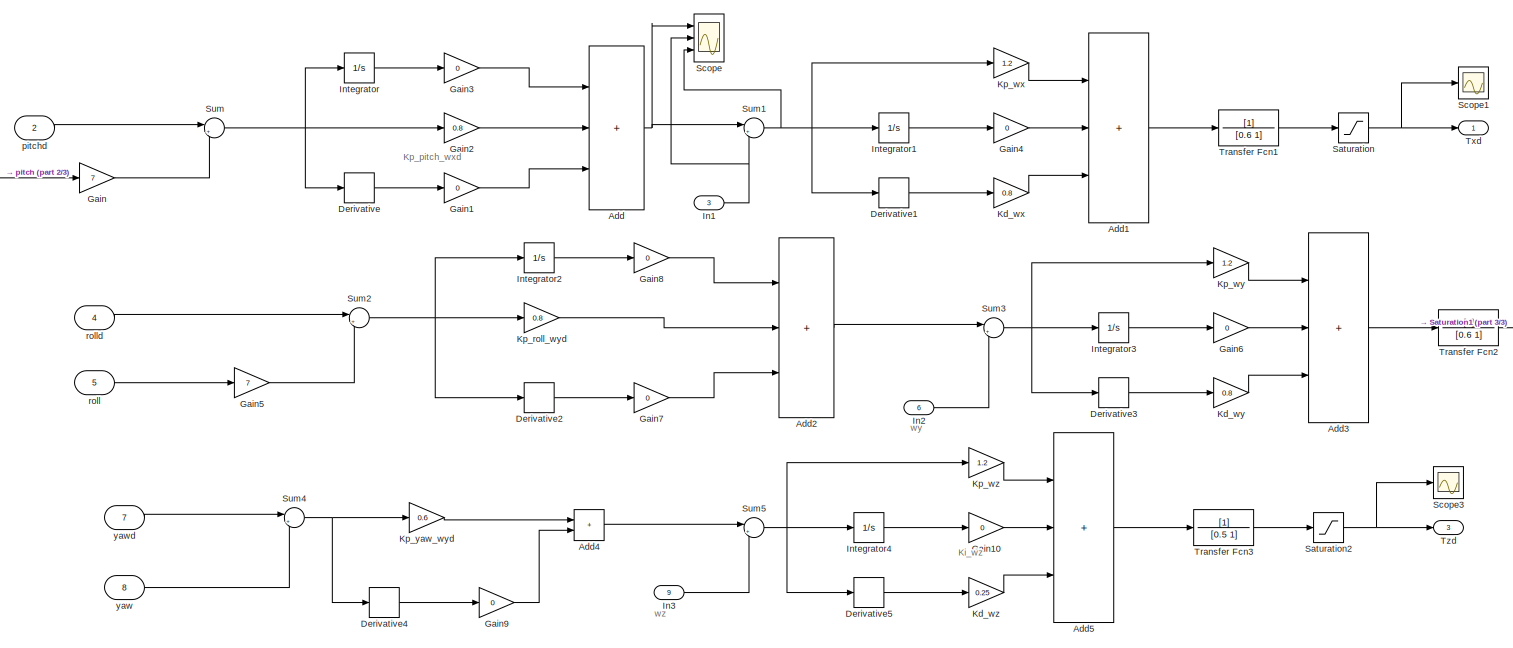
[diagram: root canvas - part 1/3, most of the canvas]
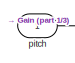
[diagram: root canvas - part 2/3, top left region]
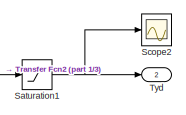
[diagram: root canvas - part 3/3, middle right region]
MODEL slx_b0e58092bb3f
KIND model
CONFIG AbsTol = auto
CONFIG EnableMultiTasking = off
CONFIG FixedStep = auto
CONFIG MaxStep = auto
CONFIG MinStep = auto
CONFIG RelTol = 1e-3
CONFIG SampleTimeConstraint = Unconstrained
CONFIG SolverName = VariableStepAuto
CONFIG StartTime = 0.0
CONFIG StopTime = 10.0
BLOCK [Sum] Add
  IconShape = rectangular
  Inputs = +++
  Ports = [3, 1]
BLOCK [Sum] Add1
  IconShape = rectangular
  Inputs = +++
  Ports = [3, 1]
BLOCK [Sum] Add2
  IconShape = rectangular
  Inputs = +++
  Ports = [3, 1]
BLOCK [Sum] Add3
  IconShape = rectangular
  Inputs = +++
  Ports = [3, 1]
BLOCK [Sum] Add4
  IconShape = rectangular
  Ports = [2, 1]
BLOCK [Sum] Add5
  IconShape = rectangular
  Inputs = +++
  Ports = [3, 1]
BLOCK [Derivative] Derivative
BLOCK [Derivative] Derivative1
BLOCK [Derivative] Derivative2
BLOCK [Derivative] Derivative3
BLOCK [Derivative] Derivative4
BLOCK [Derivative] Derivative5
BLOCK [Gain] Gain
  Gain = 7
BLOCK [Gain] Gain1
  Gain = 0
BLOCK [Gain] Gain10
  Gain = 0
BLOCK [Gain] Gain2
  Gain = 0.8
BLOCK [Gain] Gain3
  Gain = 0
BLOCK [Gain] Gain4
  Gain = 0
BLOCK [Gain] Gain5
  Gain = 7
BLOCK [Gain] Gain6
  Gain = 0
BLOCK [Gain] Gain7
  Gain = 0
BLOCK [Gain] Gain8
  Gain = 0
BLOCK [Gain] Gain9
  Gain = 0
BLOCK [Inport] In1
  Port = 3
BLOCK [Inport] In2
  Port = 6
BLOCK [Inport] In3
  Port = 9
BLOCK [Integrator] Integrator
  Ports = [1, 1]
BLOCK [Integrator] Integrator1
  Ports = [1, 1]
BLOCK [Integrator] Integrator2
  Ports = [1, 1]
BLOCK [Integrator] Integrator3
  Ports = [1, 1]
BLOCK [Integrator] Integrator4
  Ports = [1, 1]
BLOCK [Gain] Kd_wx
  Gain = 0.8
BLOCK [Gain] Kd_wy
  Gain = 0.8
BLOCK [Gain] Kd_wz
  Gain = 0.25
BLOCK [Gain] Kp_roll_wyd
  Gain = 0.8
BLOCK [Gain] Kp_wx
  Gain = 1.2
BLOCK [Gain] Kp_wy
  Gain = 1.2
BLOCK [Gain] Kp_wz
  Gain = 1.2
BLOCK [Gain] Kp_yaw_wyd
  Gain = 0.6
BLOCK [Saturate] Saturation
BLOCK [Saturate] Saturation1
BLOCK [Saturate] Saturation2
BLOCK [Scope] Scope
  Floating = off
  NumInputPorts = 3
  Ports = [3]
  ScopeSpecificationString = Simulink.scopes.TimeScopeBlockCfg('CurrentConfiguration', extmgr.ConfigurationSet(extmgr.Configuration('Core','General UI',true),extmgr.Configuration('Core','Source UI',true),extmgr.Configuration('Sources','WiredSimulink',true),extmgr.Configuration('Visuals','Time Domain',true,'SerializedDisplays',{struct('MinYLimReal','-1.00000','MaxYLimReal','1.00000','YLabelReal','','MinYLimMag','0.00000','MaxY...<+1336ch>
BLOCK [Scope] Scope1
  Floating = off
  NumInputPorts = 1
  Ports = [1]
  ScopeSpecificationString = Simulink.scopes.TimeScopeBlockCfg('CurrentConfiguration', extmgr.ConfigurationSet(extmgr.Configuration('Core','General UI',true),extmgr.Configuration('Core','Source UI',true),extmgr.Configuration('Sources','WiredSimulink',true,'DataLoggingVariableName','ScopeData1'),extmgr.Configuration('Visuals','Time Domain',true,'SerializedDisplays',{struct('MinYLimReal','-1.00000','MaxYLimReal','1.00000','YLab...<+1369ch>
BLOCK [Scope] Scope2
  Floating = off
  NumInputPorts = 1
  Ports = [1]
  ScopeSpecificationString = Simulink.scopes.TimeScopeBlockCfg('CurrentConfiguration', extmgr.ConfigurationSet(extmgr.Configuration('Core','General UI',true),extmgr.Configuration('Core','Source UI',true),extmgr.Configuration('Sources','WiredSimulink',true,'DataLoggingVariableName','ScopeData2'),extmgr.Configuration('Visuals','Time Domain',true,'SerializedDisplays',{struct('MinYLimReal','-1.00000','MaxYLimReal','1.00000','YLab...<+1370ch>
BLOCK [Scope] Scope3
  Floating = off
  NumInputPorts = 1
  Ports = [1]
  ScopeSpecificationString = Simulink.scopes.TimeScopeBlockCfg('CurrentConfiguration', extmgr.ConfigurationSet(extmgr.Configuration('Core','General UI',true),extmgr.Configuration('Core','Source UI',true),extmgr.Configuration('Sources','WiredSimulink',true,'DataLoggingVariableName','ScopeData3'),extmgr.Configuration('Visuals','Time Domain',true,'SerializedDisplays',{struct('MinYLimReal','-1.00000','MaxYLimReal','1.00000','YLab...<+1370ch>
BLOCK [Sum] Sum
  Inputs = |+-
  Ports = [2, 1]
BLOCK [Sum] Sum1
  Inputs = |+-
  Ports = [2, 1]
BLOCK [Sum] Sum2
  Inputs = |+-
  Ports = [2, 1]
BLOCK [Sum] Sum3
  Inputs = |+-
  Ports = [2, 1]
BLOCK [Sum] Sum4
  Inputs = |+-
  Ports = [2, 1]
BLOCK [Sum] Sum5
  Inputs = |+-
  Ports = [2, 1]
BLOCK [TransferFcn] Transfer Fcn1
  Denominator = [0.6 1]
BLOCK [TransferFcn] Transfer Fcn2
  Denominator = [0.6 1]
BLOCK [TransferFcn] Transfer Fcn3
  Denominator = [0.5 1]
BLOCK [Outport] Txd
BLOCK [Outport] Tyd
  Port = 2
BLOCK [Outport] Tzd
  Port = 3
BLOCK [Inport] pitch
BLOCK [Inport] pitchd
  Port = 2
BLOCK [Inport] roll
  Port = 5
BLOCK [Inport] rolld
  Port = 4
BLOCK [Inport] yaw
  Port = 8
BLOCK [Inport] yawd
  Port = 7
ANNOTATION (root): Ki_wz
ANNOTATION (root): Kp_pitch_wxd
ANNOTATION (root): wy
ANNOTATION (root): wz
LINE Add1:1 -> Transfer Fcn1:1
LINE Add2:1 -> Sum3:1
LINE Add3:1 -> Transfer Fcn2:1
LINE Add4:1 -> Sum5:1
LINE Add5:1 -> Transfer Fcn3:1
NET Add:1 -> Scope:1, Sum1:1
LINE Derivative1:1 -> Kd_wx:1
LINE Derivative2:1 -> Gain7:1
LINE Derivative3:1 -> Kd_wy:1
LINE Derivative4:1 -> Gain9:1
LINE Derivative5:1 -> Kd_wz:1
LINE Derivative:1 -> Gain1:1
LINE Gain10:1 -> Add5:2
LINE Gain1:1 -> Add:3
LINE Gain2:1 -> Add:2
LINE Gain3:1 -> Add:1
LINE Gain4:1 -> Add1:2
LINE Gain5:1 -> Sum2:2
LINE Gain6:1 -> Add3:2
LINE Gain7:1 -> Add2:3
LINE Gain8:1 -> Add2:1
LINE Gain9:1 -> Add4:2
LINE Gain:1 -> Sum:2
NET In1:1 -> Scope:2, Sum1:2
LINE In2:1 -> Sum3:2
LINE In3:1 -> Sum5:2
LINE Integrator1:1 -> Gain4:1
LINE Integrator2:1 -> Gain8:1
LINE Integrator3:1 -> Gain6:1
LINE Integrator4:1 -> Gain10:1
LINE Integrator:1 -> Gain3:1
LINE Kd_wx:1 -> Add1:3
LINE Kd_wy:1 -> Add3:3
LINE Kd_wz:1 -> Add5:3
LINE Kp_roll_wyd:1 -> Add2:2
LINE Kp_wx:1 -> Add1:1
LINE Kp_wy:1 -> Add3:1
LINE Kp_wz:1 -> Add5:1
LINE Kp_yaw_wyd:1 -> Add4:1
NET Saturation1:1 -> Scope2:1, Tyd:1
NET Saturation2:1 -> Scope3:1, Tzd:1
NET Saturation:1 -> Scope1:1, Txd:1
NET Sum1:1 -> Derivative1:1, Integrator1:1, Kp_wx:1, Scope:3
NET Sum2:1 -> Derivative2:1, Integrator2:1, Kp_roll_wyd:1
NET Sum3:1 -> Derivative3:1, Integrator3:1, Kp_wy:1
NET Sum4:1 -> Derivative4:1, Kp_yaw_wyd:1
NET Sum5:1 -> Derivative5:1, Integrator4:1, Kp_wz:1
NET Sum:1 -> Derivative:1, Gain2:1, Integrator:1
LINE Transfer Fcn1:1 -> Saturation:1
LINE Transfer Fcn2:1 -> Saturation1:1
LINE Transfer Fcn3:1 -> Saturation2:1
LINE pitch:1 -> Gain:1
LINE pitchd:1 -> Sum:1
LINE roll:1 -> Gain5:1
LINE rolld:1 -> Sum2:1
LINE yaw:1 -> Sum4:2
LINE yawd:1 -> Sum4:1
note: NET lines group one-source signal fan-out (src -> all destinations, sorted); 1:1 wires keep LINE
